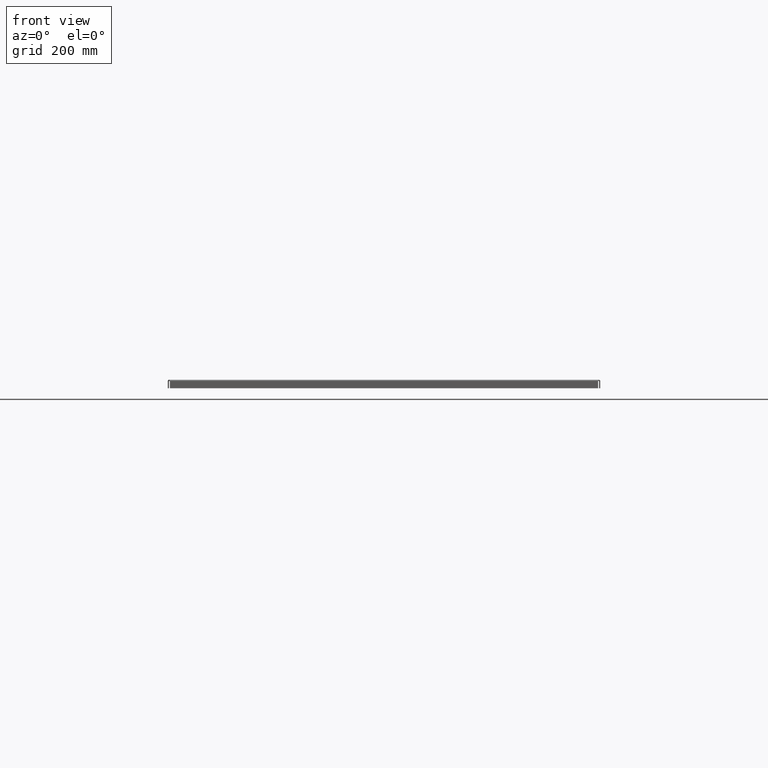
[diagram: clean part render]
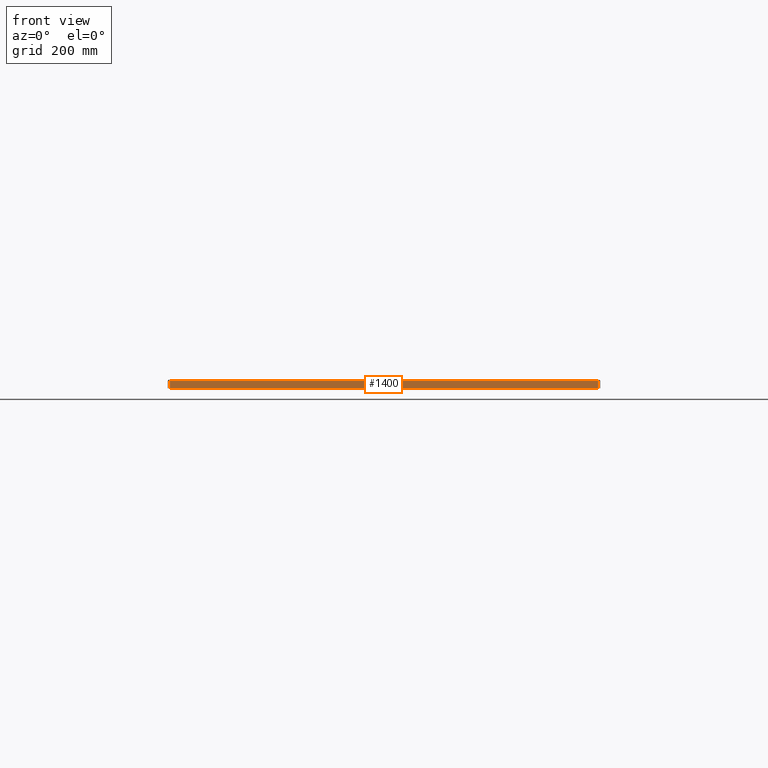
[diagram: same view with one face highlighted and labeled with its STEP entity id]
A machine part, front view. The second image highlights one B-rep face of the part: STEP entity #1400.
In plain terms, the highlighted planar face has unit normal (0, -1, 0).
Its self-contained STEP definition (entity closure, byte-faithful):
#1159=CARTESIAN_POINT('',(43.786611652351681,0.0,-0.015600000000001));
#1160=VERTEX_POINT('',#1159);
#1161=CARTESIAN_POINT('',(0.213388347648317,0.0,-0.015600000000001));
#1162=VERTEX_POINT('',#1161);
#1163=CARTESIAN_POINT('',(43.786611652351681,-9.549783E-019,-0.0156));
#1164=DIRECTION('',(-1.0,0.0,0.0));
#1165=VECTOR('',#1164,43.573223304703362);
#1166=LINE('',#1163,#1165);
#1167=EDGE_CURVE('',#1160,#1162,#1166,.T.);
#1243=CARTESIAN_POINT('',(0.213388347648317,-4.370957E-017,-0.750000000000001));
#1244=VERTEX_POINT('',#1243);
#1245=CARTESIAN_POINT('',(0.213388347648317,-4.496903E-017,-0.750000000000001));
#1246=DIRECTION('',(0.0,0.0,1.0));
#1247=VECTOR('',#1246,0.7344);
#1248=LINE('',#1245,#1247);
#1249=EDGE_CURVE('',#1244,#1162,#1248,.T.);
#1353=CARTESIAN_POINT('',(43.786611652351681,-4.370957E-017,-0.750000000000001));
#1354=VERTEX_POINT('',#1353);
#1355=CARTESIAN_POINT('',(43.786611652351681,-1.338220E-033,-0.015600000000001));
#1356=DIRECTION('',(0.0,0.0,-1.0));
#1357=VECTOR('',#1356,0.7344);
#1358=LINE('',#1355,#1357);
#1359=EDGE_CURVE('',#1160,#1354,#1358,.T.);
#1377=CARTESIAN_POINT('',(43.786611652351681,-4.370957E-017,-0.750000000000001));
#1378=DIRECTION('',(-1.0,0.0,0.0));
#1379=VECTOR('',#1378,43.573223304703362);
#1380=LINE('',#1377,#1379);
#1381=EDGE_CURVE('',#1354,#1244,#1380,.T.);
#1389=CARTESIAN_POINT('',(22.000000000000004,-2.185478E-017,-0.338242214570127));
#1390=DIRECTION('',(0.0,-1.0,0.0));
#1391=DIRECTION('',(1.0,0.0,0.0));
#1392=AXIS2_PLACEMENT_3D('',#1389,#1390,#1391);
#1393=PLANE('',#1392);
#1394=ORIENTED_EDGE('',*,*,#1167,.T.);
#1395=ORIENTED_EDGE('',*,*,#1249,.F.);
#1396=ORIENTED_EDGE('',*,*,#1381,.F.);
#1397=ORIENTED_EDGE('',*,*,#1359,.F.);
#1398=EDGE_LOOP('',(#1394,#1395,#1396,#1397));
#1399=FACE_OUTER_BOUND('',#1398,.T.);
#1400=ADVANCED_FACE('',(#1399),#1393,.T.);